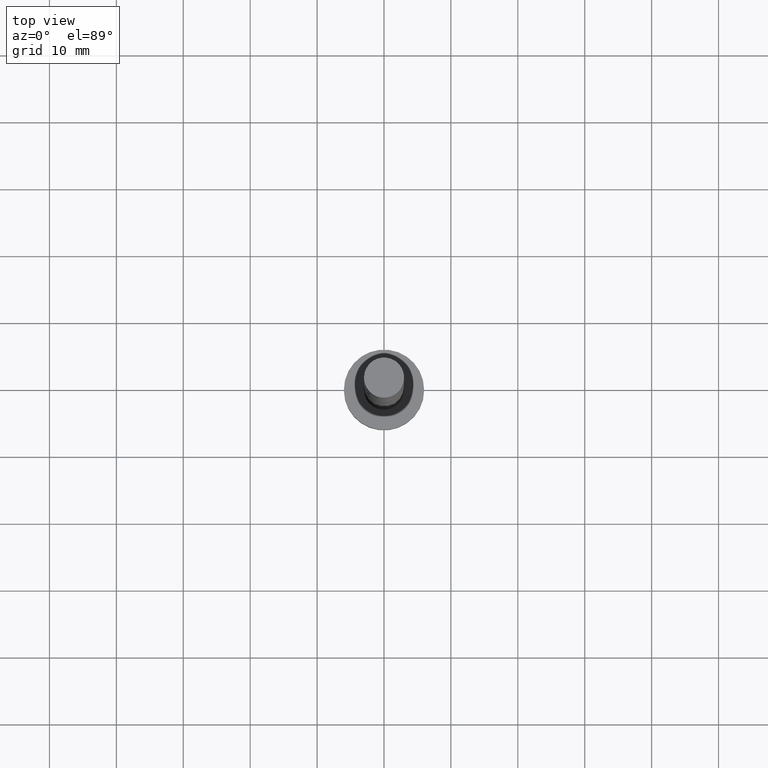
[diagram: clean part render]
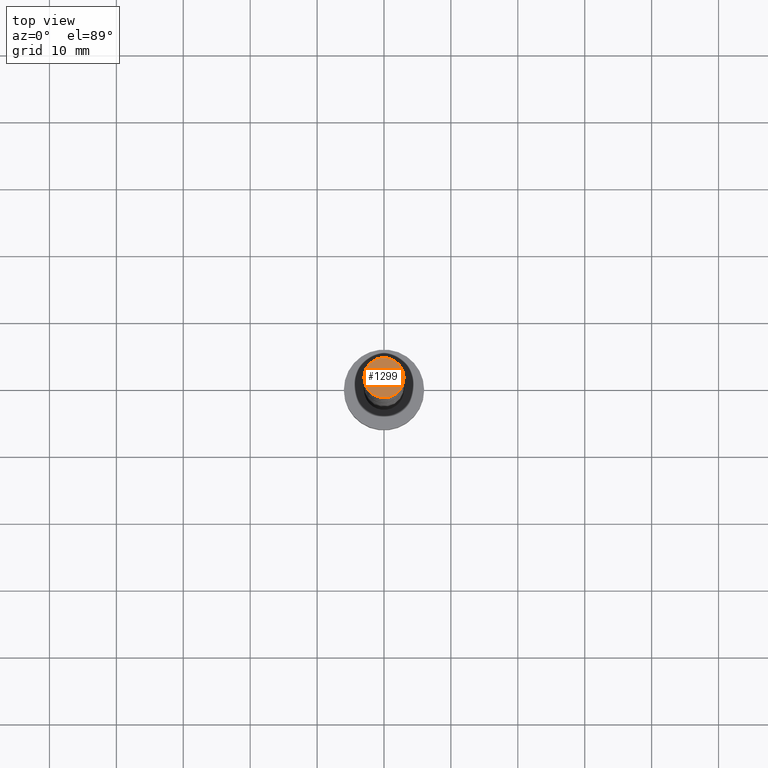
[diagram: same view with one face highlighted and labeled with its STEP entity id]
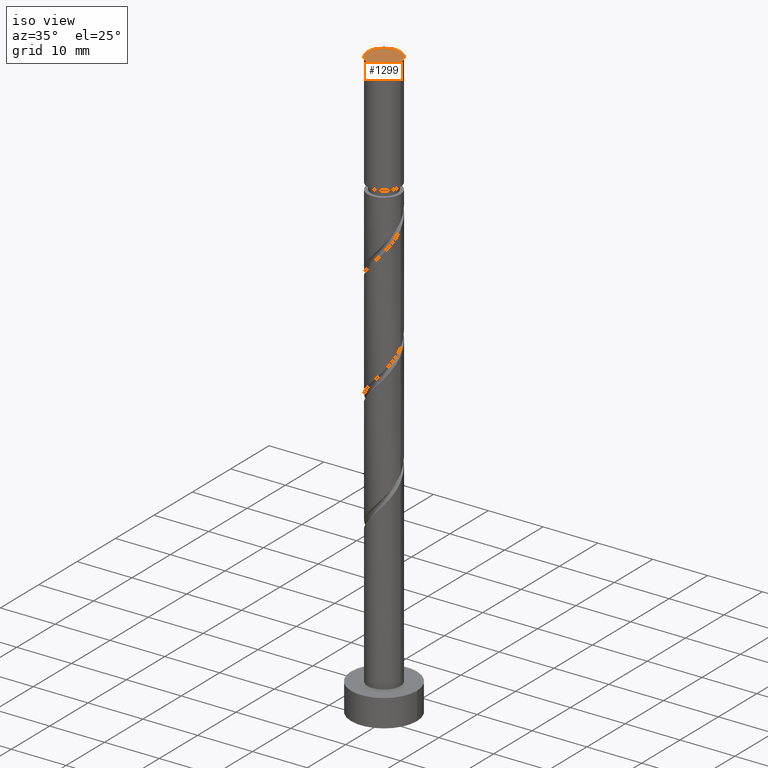
[diagram: same view with one face highlighted and labeled with its STEP entity id]
A machine part, top view. The second image highlights one B-rep face of the part: STEP entity #1299.
A second angle (iso view) of the same face is appended — the face is thin or edge-on in the first view.
In plain terms, the highlighted planar face has unit normal (0, 0, 1).
Its self-contained STEP definition (entity closure, byte-faithful):
#4 = FACE_OUTER_BOUND ( 'NONE', #359, .T. ) ;
#101 = VERTEX_POINT ( 'NONE', #164 ) ;
#118 = DIRECTION ( 'NONE',  ( 1.000000000000000000, 0.000000000000000000, -0.000000000000000000 ) ) ;
#119 = CARTESIAN_POINT ( 'NONE',  ( 0.000000000000000000, 0.000000000000000000, 108.0000000000000000 ) ) ;
#164 = CARTESIAN_POINT ( 'NONE',  ( -3.000000000000000444, 0.000000000000000000, 108.0000000000000000 ) ) ;
#248 = DIRECTION ( 'NONE',  ( 0.000000000000000000, 0.000000000000000000, 1.000000000000000000 ) ) ;
#280 = CIRCLE ( 'NONE', #1185, 3.000000000000000444 ) ;
#346 = CIRCLE ( 'NONE', #1237, 3.000000000000000444 ) ;
#359 = EDGE_LOOP ( 'NONE', ( #602, #1453 ) ) ;
#428 = EDGE_CURVE ( 'NONE', #1174, #101, #346, .T. ) ;
#602 = ORIENTED_EDGE ( 'NONE', *, *, #779, .T. ) ;
#688 = CARTESIAN_POINT ( 'NONE',  ( 3.000000000000000444, 3.673940397442060361E-16, 108.0000000000000000 ) ) ;
#779 = EDGE_CURVE ( 'NONE', #101, #1174, #280, .T. ) ;
#852 = DIRECTION ( 'NONE',  ( 1.000000000000000000, 0.000000000000000000, 0.000000000000000000 ) ) ;
#854 = DIRECTION ( 'NONE',  ( 1.000000000000000000, 0.000000000000000000, 0.000000000000000000 ) ) ;
#972 = CARTESIAN_POINT ( 'NONE',  ( 0.000000000000000000, 0.000000000000000000, 108.0000000000000000 ) ) ;
#1017 = AXIS2_PLACEMENT_3D ( 'NONE', #972, #248, #118 ) ;
#1066 = CARTESIAN_POINT ( 'NONE',  ( 0.000000000000000000, 0.000000000000000000, 108.0000000000000000 ) ) ;
#1084 = PLANE ( 'NONE',  #1017 ) ;
#1174 = VERTEX_POINT ( 'NONE', #688 ) ;
#1185 = AXIS2_PLACEMENT_3D ( 'NONE', #1066, #1554, #854 ) ;
#1237 = AXIS2_PLACEMENT_3D ( 'NONE', #119, #1348, #852 ) ;
#1299 = ADVANCED_FACE ( 'NONE', ( #4 ), #1084, .T. ) ;
#1348 = DIRECTION ( 'NONE',  ( 0.000000000000000000, 0.000000000000000000, 1.000000000000000000 ) ) ;
#1453 = ORIENTED_EDGE ( 'NONE', *, *, #428, .T. ) ;
#1554 = DIRECTION ( 'NONE',  ( 0.000000000000000000, 0.000000000000000000, 1.000000000000000000 ) ) ;